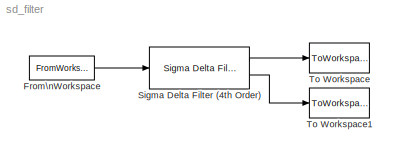
MODEL sd_filter
KIND model
BLOCK [FromWorkspace] From\nWorkspace
  SID = 74
  SampleTime = ts
  VariableName = [t',input']
  ZeroCross = on
BLOCK [Reference] Sigma Delta Filter (4th Order)  REF=Bitstream_Library/Sigma Delta Filter (4th Order)
  Ports = [1, 2]
  SID = 82
  SourceBlock = Bitstream_Library/Sigma Delta Filter (4th Order)
  SourceType = SubSystem
BLOCK [ToWorkspace] To Workspace
  MaxDataPoints = inf
  Ports = [1]
  SID = 75
  SampleTime = -1
  SaveFormat = Array
  VariableName = out_fs
BLOCK [ToWorkspace] To Workspace1
  MaxDataPoints = inf
  Ports = [1]
  SID = 81
  SampleTime = -1
  SaveFormat = Array
  VariableName = out_sd1
LINE From\nWorkspace:1 -> Sigma Delta Filter (4th Order):1
LINE Sigma Delta Filter (4th Order):1 -> To Workspace:1
LINE Sigma Delta Filter (4th Order):2 -> To Workspace1:1
